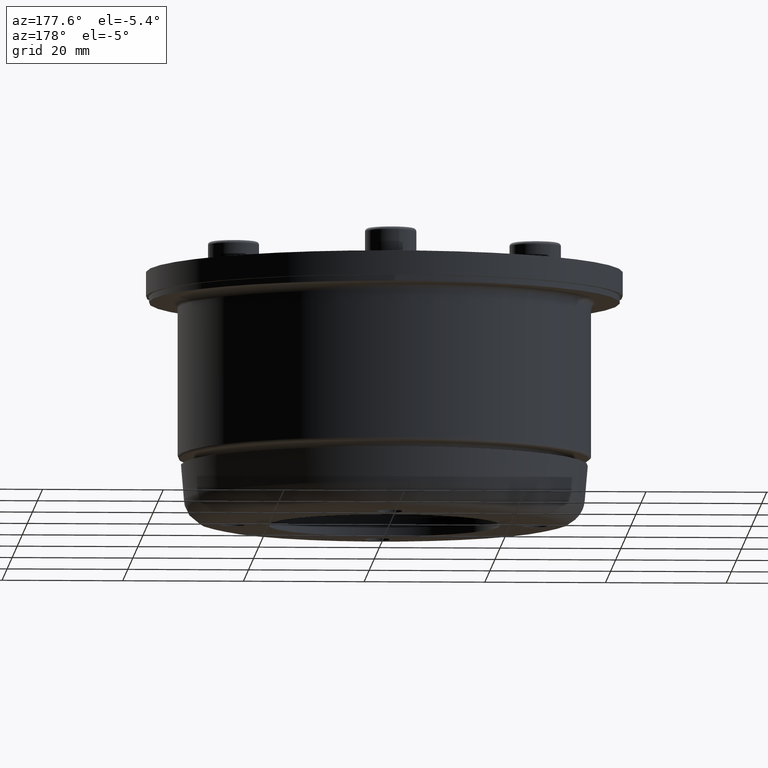
[diagram: clean part render]
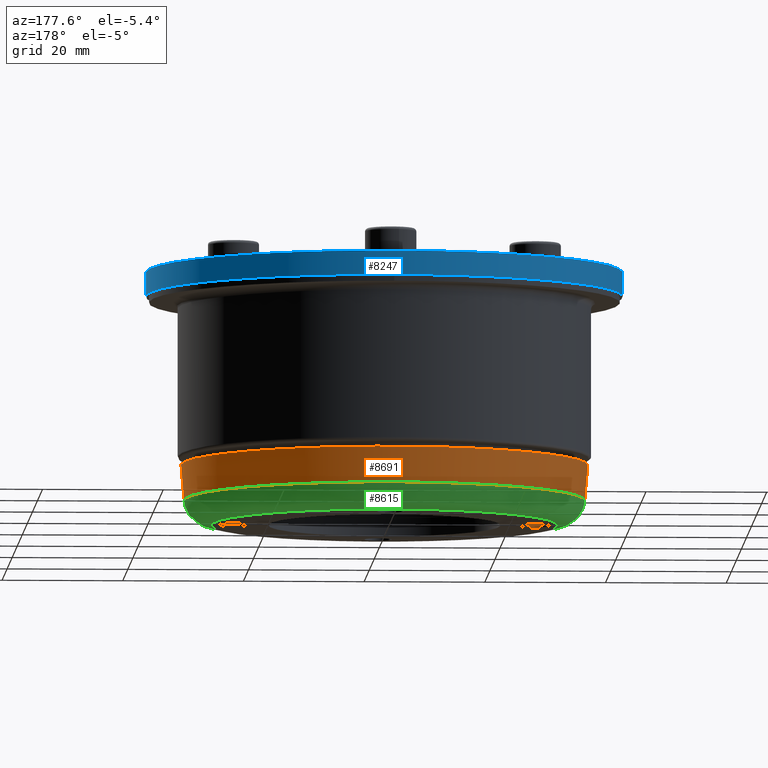
[diagram: same view with three faces highlighted in distinct colors, each labeled with its STEP entity id]
A machine part, auxiliary view with three faces highlighted in distinct colors.
Their STEP definitions:

[orange] entity #8691 — the highlighted conical surface has half-angle 5 deg.
#8604=CARTESIAN_POINT('',(-54.79013537551694,1.107799157635542,-8.129239E-015));
#8605=VERTEX_POINT('',#8604);
#8606=CARTESIAN_POINT('',(-21.599999999999984,1.107799157635542,-4.064619E-015));
#8607=DIRECTION('',(0.0,-1.0,0.0));
#8608=DIRECTION('',(1.0,0.0,0.0));
#8609=AXIS2_PLACEMENT_3D('',#8606,#8607,#8608);
#8610=CIRCLE('',#8609,33.190135375516959);
#8611=EDGE_CURVE('',#8605,#8605,#8610,.T.);
#8672=CARTESIAN_POINT('',(-21.599999999999984,1.994266385878512,0.0));
#8673=DIRECTION('',(0.0,1.0,0.0));
#8674=DIRECTION('',(-1.0,0.0,0.0));
#8675=AXIS2_PLACEMENT_3D('',#8672,#8673,#8674);
#8676=CONICAL_SURFACE('',#8675,33.267691208575471,5.000000000000004);
#8677=CARTESIAN_POINT('',(-55.304632899968411,6.988532771757024,0.0));
#8678=VERTEX_POINT('',#8677);
#8679=CARTESIAN_POINT('',(-21.599999999999984,6.988532771757024,0.0));
#8680=DIRECTION('',(0.0,1.0,0.0));
#8681=DIRECTION('',(-1.0,0.0,0.0));
#8682=AXIS2_PLACEMENT_3D('',#8679,#8680,#8681);
#8683=CIRCLE('',#8682,33.704632899968423);
#8684=EDGE_CURVE('',#8678,#8678,#8683,.T.);
#8685=ORIENTED_EDGE('',*,*,#8684,.F.);
#8686=EDGE_LOOP('',(#8685));
#8687=FACE_OUTER_BOUND('',#8686,.T.);
#8688=ORIENTED_EDGE('',*,*,#8611,.F.);
#8689=EDGE_LOOP('',(#8688));
#8690=FACE_BOUND('',#8689,.T.);
#8691=ADVANCED_FACE('',(#8687,#8690),#8676,.T.);

[blue] entity #8247 — the highlighted cylindrical surface (bore or boss wall) has radius 39.5 mm, axis along (0, 0, 1).
#7812=CARTESIAN_POINT('',(39.500000000000021,-2.49999999999999,4.837355E-015));
#7813=VERTEX_POINT('',#7812);
#7814=CARTESIAN_POINT('',(0.0,-2.49999999999999,0.0));
#7815=DIRECTION('',(0.0,-1.0,0.0));
#7816=DIRECTION('',(-1.0,0.0,0.0));
#7817=AXIS2_PLACEMENT_3D('',#7814,#7815,#7816);
#7818=CIRCLE('',#7817,39.500000000000021);
#7819=EDGE_CURVE('',#7813,#7813,#7818,.F.);
#8125=CARTESIAN_POINT('',(39.500000000000021,-6.499999999999991,4.837355E-015));
#8126=VERTEX_POINT('',#8125);
#8127=CARTESIAN_POINT('',(0.0,-6.499999999999991,0.0));
#8128=DIRECTION('',(0.0,-1.0,0.0));
#8129=DIRECTION('',(-1.0,0.0,0.0));
#8130=AXIS2_PLACEMENT_3D('',#8127,#8128,#8129);
#8131=CIRCLE('',#8130,39.500000000000021);
#8132=EDGE_CURVE('',#8126,#8126,#8131,.T.);
#8236=CARTESIAN_POINT('',(0.0,-5.499999999999991,0.0));
#8237=DIRECTION('',(0.0,1.0,0.0));
#8238=DIRECTION('',(-1.0,0.0,0.0));
#8239=AXIS2_PLACEMENT_3D('',#8236,#8237,#8238);
#8240=CYLINDRICAL_SURFACE('',#8239,39.500000000000021);
#8241=ORIENTED_EDGE('',*,*,#7819,.F.);
#8242=EDGE_LOOP('',(#8241));
#8243=FACE_OUTER_BOUND('',#8242,.T.);
#8244=ORIENTED_EDGE('',*,*,#8132,.F.);
#8245=EDGE_LOOP('',(#8244));
#8246=FACE_BOUND('',#8245,.T.);
#8247=ADVANCED_FACE('',(#8243,#8246),#8240,.T.);

[green] entity #8615 — the highlighted toroidal blend (fillet) surface has major radius 28.7073 mm and minor (blend) radius 4.5 mm.
#8588=CARTESIAN_POINT('',(-21.599999999999984,1.500000000000004,0.0));
#8589=DIRECTION('',(0.0,1.0,0.0));
#8590=DIRECTION('',(0.0,0.0,1.0));
#8591=AXIS2_PLACEMENT_3D('',#8588,#8589,#8590);
#8592=TOROIDAL_SURFACE('',#8591,28.707259234104107,4.5);
#8593=CARTESIAN_POINT('',(-50.307259234104087,-3.0,0.0));
#8594=VERTEX_POINT('',#8593);
#8595=CARTESIAN_POINT('',(-21.599999999999984,-3.0,0.0));
#8596=DIRECTION('',(0.0,1.0,0.0));
#8597=DIRECTION('',(1.0,0.0,0.0));
#8598=AXIS2_PLACEMENT_3D('',#8595,#8596,#8597);
#8599=CIRCLE('',#8598,28.707259234104107);
#8600=EDGE_CURVE('',#8594,#8594,#8599,.T.);
#8601=ORIENTED_EDGE('',*,*,#8600,.T.);
#8602=EDGE_LOOP('',(#8601));
#8603=FACE_OUTER_BOUND('',#8602,.T.);
#8604=CARTESIAN_POINT('',(-54.79013537551694,1.107799157635542,-8.129239E-015));
#8605=VERTEX_POINT('',#8604);
#8606=CARTESIAN_POINT('',(-21.599999999999984,1.107799157635542,-4.064619E-015));
#8607=DIRECTION('',(0.0,-1.0,0.0));
#8608=DIRECTION('',(1.0,0.0,0.0));
#8609=AXIS2_PLACEMENT_3D('',#8606,#8607,#8608);
#8610=CIRCLE('',#8609,33.190135375516959);
#8611=EDGE_CURVE('',#8605,#8605,#8610,.T.);
#8612=ORIENTED_EDGE('',*,*,#8611,.T.);
#8613=EDGE_LOOP('',(#8612));
#8614=FACE_BOUND('',#8613,.T.);
#8615=ADVANCED_FACE('',(#8603,#8614),#8592,.T.);